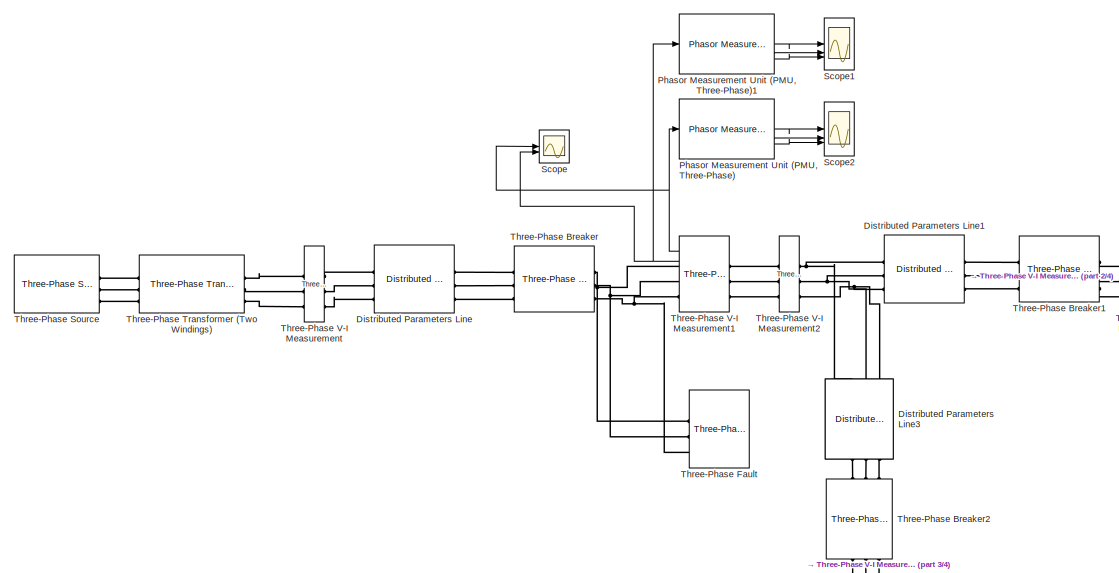
[diagram: root canvas - part 1/4, top left region]
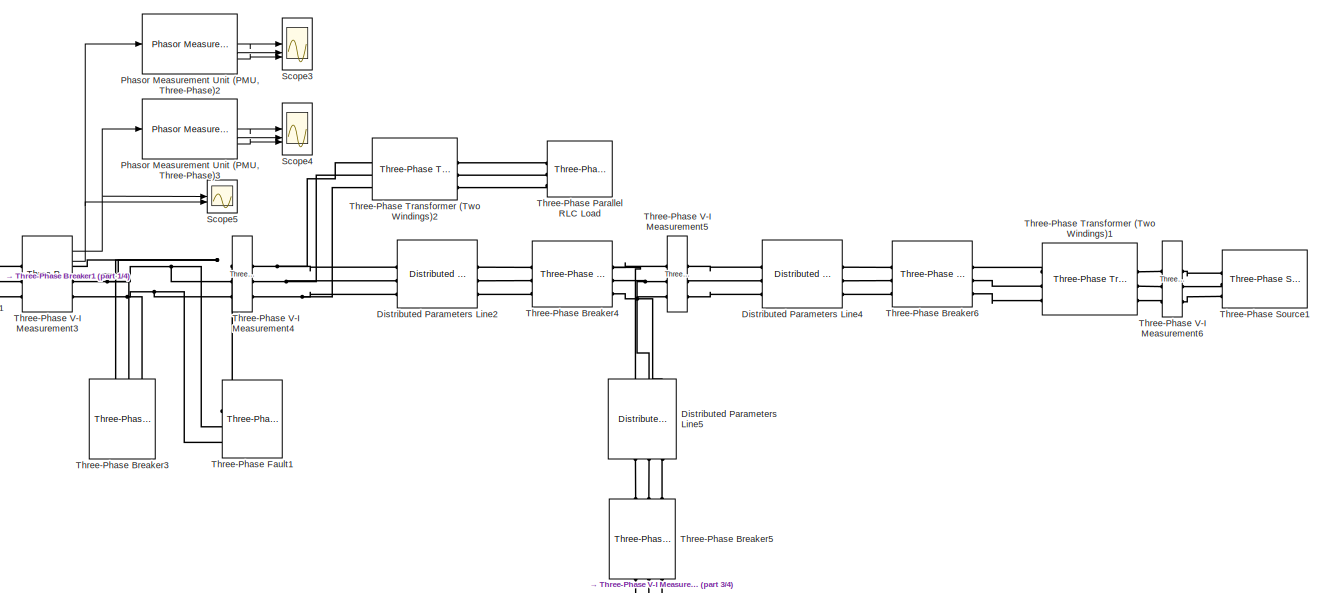
[diagram: root canvas - part 2/4, top right region]
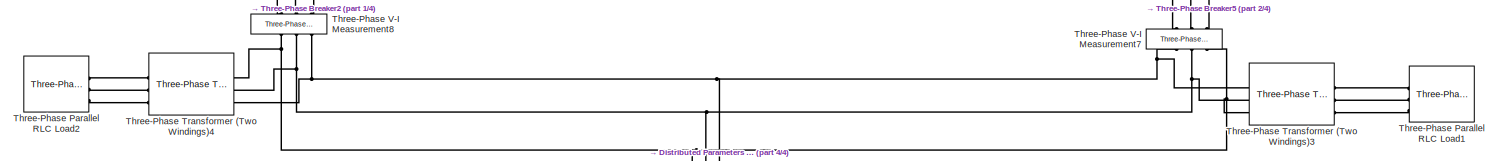
[diagram: root canvas - part 3/4, central region]
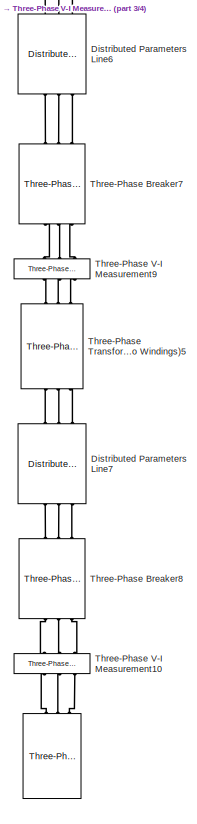
[diagram: root canvas - part 4/4, bottom center region]
MODEL slx_e5aff665d849
KIND model
CONFIG AbsTol = auto
CONFIG EnableMultiTasking = off
CONFIG FixedStep = auto
CONFIG MaxStep = auto
CONFIG MinStep = auto
CONFIG RelTol = 1e-3
CONFIG SampleTimeConstraint = Unconstrained
CONFIG SolverName = VariableStepAuto
CONFIG StartTime = 0.0
CONFIG StopTime = 10.0
BLOCK [Reference]    REF=spsThreePhaseSourceLib/Three-Phase Source
  LibrarySourceBlock = sps_lib/Sources/Three-Phase Source
  NameLocation = right
  SourceBlock = spsThreePhaseSourceLib/Three-Phase Source
  SourceType = Three-Phase Source
BLOCK [Reference]     REF=spsDistributedParametersLineLib/Distributed Parameters Line
  LibrarySourceBlock = sps_lib/Power Grid Elements/Distributed Parameters Line
  NameLocation = right
  SourceBlock = spsDistributedParametersLineLib/Distributed Parameters Line
  SourceType = Distributed Parameters Line
BLOCK [Reference] Distributed Parameters Line  REF=spsDistributedParametersLineLib/Distributed Parameters Line
  LibrarySourceBlock = sps_lib/Power Grid Elements/Distributed Parameters Line
  SourceBlock = spsDistributedParametersLineLib/Distributed Parameters Line
  SourceType = Distributed Parameters Line
BLOCK [Reference] Distributed Parameters Line1  REF=spsDistributedParametersLineLib/Distributed Parameters Line
  LibrarySourceBlock = sps_lib/Power Grid Elements/Distributed Parameters Line
  SourceBlock = spsDistributedParametersLineLib/Distributed Parameters Line
  SourceType = Distributed Parameters Line
BLOCK [Reference] Distributed Parameters Line2  REF=spsDistributedParametersLineLib/Distributed Parameters Line
  LibrarySourceBlock = sps_lib/Power Grid Elements/Distributed Parameters Line
  SourceBlock = spsDistributedParametersLineLib/Distributed Parameters Line
  SourceType = Distributed Parameters Line
BLOCK [Reference] Distributed Parameters Line3  REF=spsDistributedParametersLineLib/Distributed Parameters Line
  LibrarySourceBlock = sps_lib/Power Grid Elements/Distributed Parameters Line
  NameLocation = right
  SourceBlock = spsDistributedParametersLineLib/Distributed Parameters Line
  SourceType = Distributed Parameters Line
BLOCK [Reference] Distributed Parameters Line4  REF=spsDistributedParametersLineLib/Distributed Parameters Line
  LibrarySourceBlock = sps_lib/Power Grid Elements/Distributed Parameters Line
  SourceBlock = spsDistributedParametersLineLib/Distributed Parameters Line
  SourceType = Distributed Parameters Line
BLOCK [Reference] Distributed Parameters Line5  REF=spsDistributedParametersLineLib/Distributed Parameters Line
  LibrarySourceBlock = sps_lib/Power Grid Elements/Distributed Parameters Line
  NameLocation = right
  SourceBlock = spsDistributedParametersLineLib/Distributed Parameters Line
  SourceType = Distributed Parameters Line
BLOCK [Reference] Distributed Parameters Line6  REF=spsDistributedParametersLineLib/Distributed Parameters Line
  LibrarySourceBlock = sps_lib/Power Grid Elements/Distributed Parameters Line
  NameLocation = right
  SourceBlock = spsDistributedParametersLineLib/Distributed Parameters Line
  SourceType = Distributed Parameters Line
BLOCK [Reference] Distributed Parameters Line7  REF=spsDistributedParametersLineLib/Distributed Parameters Line
  LibrarySourceBlock = sps_lib/Power Grid Elements/Distributed Parameters Line
  NameLocation = right
  SourceBlock = spsDistributedParametersLineLib/Distributed Parameters Line
  SourceType = Distributed Parameters Line
BLOCK [Reference] Phasor Measurement Unit (PMU, Three-Phase)  REF=eePMU/Phasor Measurement Unit
(PMU, Three-Phase)
  LibrarySourceBlock = ee_sl_lib/Measurements/Phasor Measurement Unit\n(PMU, Three-Phase)
  SourceBlock = eePMU/Phasor Measurement Unit\n(PMU, Three-Phase)
  SourceType = Phasor Measurement Unit (PMU, Three-Phase)
BLOCK [Reference] Phasor Measurement Unit (PMU, Three-Phase)1  REF=eePMU/Phasor Measurement Unit
(PMU, Three-Phase)
  LibrarySourceBlock = ee_sl_lib/Measurements/Phasor Measurement Unit\n(PMU, Three-Phase)
  SourceBlock = eePMU/Phasor Measurement Unit\n(PMU, Three-Phase)
  SourceType = Phasor Measurement Unit (PMU, Three-Phase)
BLOCK [Reference] Phasor Measurement Unit (PMU, Three-Phase)2  REF=eePMU/Phasor Measurement Unit
(PMU, Three-Phase)
  LibrarySourceBlock = ee_sl_lib/Measurements/Phasor Measurement Unit\n(PMU, Three-Phase)
  SourceBlock = eePMU/Phasor Measurement Unit\n(PMU, Three-Phase)
  SourceType = Phasor Measurement Unit (PMU, Three-Phase)
BLOCK [Reference] Phasor Measurement Unit (PMU, Three-Phase)3  REF=eePMU/Phasor Measurement Unit
(PMU, Three-Phase)
  LibrarySourceBlock = ee_sl_lib/Measurements/Phasor Measurement Unit\n(PMU, Three-Phase)
  SourceBlock = eePMU/Phasor Measurement Unit\n(PMU, Three-Phase)
  SourceType = Phasor Measurement Unit (PMU, Three-Phase)
BLOCK [Scope] Scope
  Floating = off
  NumInputPorts = 2
  ScopeSpecificationString = Simulink.scopes.TimeScopeBlockCfg('CurrentConfiguration', extmgr.ConfigurationSet(extmgr.Configuration('Core','General UI',true),extmgr.Configuration('Core','Source UI',true),extmgr.Configuration('Sources','WiredSimulink',true),extmgr.Configuration('Visuals','Time Domain',true,'SerializedDisplays',{struct('MinYLimReal','-10','MaxYLimReal','10','YLabelReal','','MinYLimMag','0','MaxYLimMag','10','Le...<+1278ch>
BLOCK [Scope] Scope1
  Floating = off
  NumInputPorts = 3
  ScopeSpecificationString = Simulink.scopes.TimeScopeBlockCfg('CurrentConfiguration', extmgr.ConfigurationSet(extmgr.Configuration('Core','General UI',true),extmgr.Configuration('Core','Source UI',true),extmgr.Configuration('Sources','WiredSimulink',true,'DataLoggingVariableName','ScopeData1'),extmgr.Configuration('Visuals','Time Domain',true,'SerializedDisplays',{struct('MinYLimReal','-10','MaxYLimReal','10','YLabelReal',''...<+1317ch>
BLOCK [Scope] Scope2
  Floating = off
  NumInputPorts = 3
  ScopeSpecificationString = Simulink.scopes.TimeScopeBlockCfg('CurrentConfiguration', extmgr.ConfigurationSet(extmgr.Configuration('Core','General UI',true),extmgr.Configuration('Core','Source UI',true),extmgr.Configuration('Sources','WiredSimulink',true,'DataLoggingVariableName','ScopeData2'),extmgr.Configuration('Visuals','Time Domain',true,'SerializedDisplays',{struct('MinYLimReal','-10','MaxYLimReal','10','YLabelReal',''...<+1317ch>
BLOCK [Scope] Scope3
  Floating = off
  NumInputPorts = 3
  ScopeSpecificationString = Simulink.scopes.TimeScopeBlockCfg('CurrentConfiguration', extmgr.ConfigurationSet(extmgr.Configuration('Core','General UI',true),extmgr.Configuration('Core','Source UI',true),extmgr.Configuration('Sources','WiredSimulink',true,'DataLoggingVariableName','ScopeData3'),extmgr.Configuration('Visuals','Time Domain',true,'SerializedDisplays',{struct('MinYLimReal','-10','MaxYLimReal','10','YLabelReal',''...<+1317ch>
BLOCK [Scope] Scope4
  Floating = off
  NumInputPorts = 3
  ScopeSpecificationString = Simulink.scopes.TimeScopeBlockCfg('CurrentConfiguration', extmgr.ConfigurationSet(extmgr.Configuration('Core','General UI',true),extmgr.Configuration('Core','Source UI',true),extmgr.Configuration('Sources','WiredSimulink',true,'DataLoggingVariableName','ScopeData4'),extmgr.Configuration('Visuals','Time Domain',true,'SerializedDisplays',{struct('MinYLimReal','-10','MaxYLimReal','10','YLabelReal',''...<+1317ch>
BLOCK [Scope] Scope5
  Floating = off
  NumInputPorts = 2
  ScopeSpecificationString = Simulink.scopes.TimeScopeBlockCfg('CurrentConfiguration', extmgr.ConfigurationSet(extmgr.Configuration('Core','General UI',true),extmgr.Configuration('Core','Source UI',true),extmgr.Configuration('Sources','WiredSimulink',true,'DataLoggingVariableName','ScopeData5'),extmgr.Configuration('Visuals','Time Domain',true,'SerializedDisplays',{struct('MinYLimReal','-10','MaxYLimReal','10','YLabelReal',''...<+1317ch>
BLOCK [Reference] Three-Phase Breaker  REF=spsThreePhaseBreakerLib/Three-Phase Breaker
  LibrarySourceBlock = sps_lib/Power Grid Elements/Three-Phase Breaker
  SourceBlock = spsThreePhaseBreakerLib/Three-Phase Breaker
  SourceType = Three-Phase Breaker
BLOCK [Reference] Three-Phase Breaker1  REF=spsThreePhaseBreakerLib/Three-Phase Breaker
  LibrarySourceBlock = sps_lib/Power Grid Elements/Three-Phase Breaker
  SourceBlock = spsThreePhaseBreakerLib/Three-Phase Breaker
  SourceType = Three-Phase Breaker
BLOCK [Reference] Three-Phase Breaker2  REF=spsThreePhaseBreakerLib/Three-Phase Breaker
  LibrarySourceBlock = sps_lib/Power Grid Elements/Three-Phase Breaker
  NameLocation = right
  SourceBlock = spsThreePhaseBreakerLib/Three-Phase Breaker
  SourceType = Three-Phase Breaker
BLOCK [Reference] Three-Phase Breaker3  REF=spsThreePhaseBreakerLib/Three-Phase Breaker
  LibrarySourceBlock = sps_lib/Power Grid Elements/Three-Phase Breaker
  NameLocation = right
  SourceBlock = spsThreePhaseBreakerLib/Three-Phase Breaker
  SourceType = Three-Phase Breaker
BLOCK [Reference] Three-Phase Breaker4  REF=spsThreePhaseBreakerLib/Three-Phase Breaker
  LibrarySourceBlock = sps_lib/Power Grid Elements/Three-Phase Breaker
  SourceBlock = spsThreePhaseBreakerLib/Three-Phase Breaker
  SourceType = Three-Phase Breaker
BLOCK [Reference] Three-Phase Breaker5  REF=spsThreePhaseBreakerLib/Three-Phase Breaker
  LibrarySourceBlock = sps_lib/Power Grid Elements/Three-Phase Breaker
  NameLocation = right
  SourceBlock = spsThreePhaseBreakerLib/Three-Phase Breaker
  SourceType = Three-Phase Breaker
BLOCK [Reference] Three-Phase Breaker6  REF=spsThreePhaseBreakerLib/Three-Phase Breaker
  LibrarySourceBlock = sps_lib/Power Grid Elements/Three-Phase Breaker
  SourceBlock = spsThreePhaseBreakerLib/Three-Phase Breaker
  SourceType = Three-Phase Breaker
BLOCK [Reference] Three-Phase Breaker7  REF=spsThreePhaseBreakerLib/Three-Phase Breaker
  LibrarySourceBlock = sps_lib/Power Grid Elements/Three-Phase Breaker
  NameLocation = right
  SourceBlock = spsThreePhaseBreakerLib/Three-Phase Breaker
  SourceType = Three-Phase Breaker
BLOCK [Reference] Three-Phase Breaker8  REF=spsThreePhaseBreakerLib/Three-Phase Breaker
  LibrarySourceBlock = sps_lib/Power Grid Elements/Three-Phase Breaker
  NameLocation = right
  SourceBlock = spsThreePhaseBreakerLib/Three-Phase Breaker
  SourceType = Three-Phase Breaker
BLOCK [Reference] Three-Phase Fault  REF=spsThreePhaseFaultLib/Three-Phase Fault
  LibrarySourceBlock = sps_lib/Power Grid Elements/Three-Phase Fault
  SourceBlock = spsThreePhaseFaultLib/Three-Phase Fault
  SourceType = Three-Phase Fault
BLOCK [Reference] Three-Phase Fault1  REF=spsThreePhaseFaultLib/Three-Phase Fault
  LibrarySourceBlock = sps_lib/Power Grid Elements/Three-Phase Fault
  SourceBlock = spsThreePhaseFaultLib/Three-Phase Fault
  SourceType = Three-Phase Fault
BLOCK [Reference] Three-Phase Parallel RLC Load  REF=spsThreePhaseParallelRLCLoadLib/Three-Phase
Parallel RLC Load
  AttributesFormatString = \n
  LibrarySourceBlock = sps_lib/Passives/Three-Phase\nParallel RLC Load
  NameLocation = right
  SourceBlock = spsThreePhaseParallelRLCLoadLib/Three-Phase\nParallel RLC Load
  SourceType = Three-Phase Parallel RLC Load
BLOCK [Reference] Three-Phase Parallel RLC Load1  REF=spsThreePhaseParallelRLCLoadLib/Three-Phase
Parallel RLC Load
  AttributesFormatString = \n
  LibrarySourceBlock = sps_lib/Passives/Three-Phase\nParallel RLC Load
  NameLocation = right
  SourceBlock = spsThreePhaseParallelRLCLoadLib/Three-Phase\nParallel RLC Load
  SourceType = Three-Phase Parallel RLC Load
BLOCK [Reference] Three-Phase Parallel RLC Load2  REF=spsThreePhaseParallelRLCLoadLib/Three-Phase
Parallel RLC Load
  AttributesFormatString = \n
  LibrarySourceBlock = sps_lib/Passives/Three-Phase\nParallel RLC Load
  NameLocation = left
  SourceBlock = spsThreePhaseParallelRLCLoadLib/Three-Phase\nParallel RLC Load
  SourceType = Three-Phase Parallel RLC Load
BLOCK [Reference] Three-Phase Source  REF=spsThreePhaseSourceLib/Three-Phase Source
  LibrarySourceBlock = sps_lib/Sources/Three-Phase Source
  SourceBlock = spsThreePhaseSourceLib/Three-Phase Source
  SourceType = Three-Phase Source
BLOCK [Reference] Three-Phase Source1  REF=spsThreePhaseSourceLib/Three-Phase Source
  LibrarySourceBlock = sps_lib/Sources/Three-Phase Source
  SourceBlock = spsThreePhaseSourceLib/Three-Phase Source
  SourceType = Three-Phase Source
BLOCK [Reference] Three-Phase Transformer (Two Windings)  REF=spsThreePhaseTransformerTwoWindingsLib/Three-Phase
Transformer
(Two Windings)
  LibrarySourceBlock = sps_lib/Power Grid Elements/Three-Phase\nTransformer\n(Two Windings)
  SourceBlock = spsThreePhaseTransformerTwoWindingsLib/Three-Phase\nTransformer\n(Two Windings)
  SourceType = Three-Phase Transformer (Two Windings)
BLOCK [Reference] Three-Phase Transformer (Two Windings)1  REF=spsThreePhaseTransformerTwoWindingsLib/Three-Phase
Transformer
(Two Windings)
  LibrarySourceBlock = sps_lib/Power Grid Elements/Three-Phase\nTransformer\n(Two Windings)
  SourceBlock = spsThreePhaseTransformerTwoWindingsLib/Three-Phase\nTransformer\n(Two Windings)
  SourceType = Three-Phase Transformer (Two Windings)
BLOCK [Reference] Three-Phase Transformer (Two Windings)2  REF=spsThreePhaseTransformerTwoWindingsLib/Three-Phase
Transformer
(Two Windings)
  LibrarySourceBlock = sps_lib/Power Grid Elements/Three-Phase\nTransformer\n(Two Windings)
  SourceBlock = spsThreePhaseTransformerTwoWindingsLib/Three-Phase\nTransformer\n(Two Windings)
  SourceType = Three-Phase Transformer (Two Windings)
BLOCK [Reference] Three-Phase Transformer (Two Windings)3  REF=spsThreePhaseTransformerTwoWindingsLib/Three-Phase
Transformer
(Two Windings)
  LibrarySourceBlock = sps_lib/Power Grid Elements/Three-Phase\nTransformer\n(Two Windings)
  SourceBlock = spsThreePhaseTransformerTwoWindingsLib/Three-Phase\nTransformer\n(Two Windings)
  SourceType = Three-Phase Transformer (Two Windings)
BLOCK [Reference] Three-Phase Transformer (Two Windings)4  REF=spsThreePhaseTransformerTwoWindingsLib/Three-Phase
Transformer
(Two Windings)
  LibrarySourceBlock = sps_lib/Power Grid Elements/Three-Phase\nTransformer\n(Two Windings)
  SourceBlock = spsThreePhaseTransformerTwoWindingsLib/Three-Phase\nTransformer\n(Two Windings)
  SourceType = Three-Phase Transformer (Two Windings)
BLOCK [Reference] Three-Phase Transformer (Two Windings)5  REF=spsThreePhaseTransformerTwoWindingsLib/Three-Phase
Transformer
(Two Windings)
  LibrarySourceBlock = sps_lib/Power Grid Elements/Three-Phase\nTransformer\n(Two Windings)
  NameLocation = right
  SourceBlock = spsThreePhaseTransformerTwoWindingsLib/Three-Phase\nTransformer\n(Two Windings)
  SourceType = Three-Phase Transformer (Two Windings)
BLOCK [Reference] Three-Phase V-I Measurement  REF=spsThreePhaseVIMeasurementLib/Three-Phase
V-I Measurement
  LibrarySourceBlock = sps_lib/Sensors and Measurements/Three-Phase\nV-I Measurement
  SourceBlock = spsThreePhaseVIMeasurementLib/Three-Phase\nV-I Measurement
  SourceType = Three-Phase VI Measurement
BLOCK [Reference] Three-Phase V-I Measurement1  REF=spsThreePhaseVIMeasurementLib/Three-Phase
V-I Measurement
  LibrarySourceBlock = sps_lib/Sensors and Measurements/Three-Phase\nV-I Measurement
  SourceBlock = spsThreePhaseVIMeasurementLib/Three-Phase\nV-I Measurement
  SourceType = Three-Phase VI Measurement
BLOCK [Reference] Three-Phase V-I Measurement10  REF=spsThreePhaseVIMeasurementLib/Three-Phase
V-I Measurement
  LibrarySourceBlock = sps_lib/Sensors and Measurements/Three-Phase\nV-I Measurement
  NameLocation = right
  SourceBlock = spsThreePhaseVIMeasurementLib/Three-Phase\nV-I Measurement
  SourceType = Three-Phase VI Measurement
BLOCK [Reference] Three-Phase V-I Measurement2  REF=spsThreePhaseVIMeasurementLib/Three-Phase
V-I Measurement
  LibrarySourceBlock = sps_lib/Sensors and Measurements/Three-Phase\nV-I Measurement
  SourceBlock = spsThreePhaseVIMeasurementLib/Three-Phase\nV-I Measurement
  SourceType = Three-Phase VI Measurement
BLOCK [Reference] Three-Phase V-I Measurement3  REF=spsThreePhaseVIMeasurementLib/Three-Phase
V-I Measurement
  LibrarySourceBlock = sps_lib/Sensors and Measurements/Three-Phase\nV-I Measurement
  SourceBlock = spsThreePhaseVIMeasurementLib/Three-Phase\nV-I Measurement
  SourceType = Three-Phase VI Measurement
BLOCK [Reference] Three-Phase V-I Measurement4  REF=spsThreePhaseVIMeasurementLib/Three-Phase
V-I Measurement
  LibrarySourceBlock = sps_lib/Sensors and Measurements/Three-Phase\nV-I Measurement
  SourceBlock = spsThreePhaseVIMeasurementLib/Three-Phase\nV-I Measurement
  SourceType = Three-Phase VI Measurement
BLOCK [Reference] Three-Phase V-I Measurement5  REF=spsThreePhaseVIMeasurementLib/Three-Phase
V-I Measurement
  LibrarySourceBlock = sps_lib/Sensors and Measurements/Three-Phase\nV-I Measurement
  SourceBlock = spsThreePhaseVIMeasurementLib/Three-Phase\nV-I Measurement
  SourceType = Three-Phase VI Measurement
BLOCK [Reference] Three-Phase V-I Measurement6  REF=spsThreePhaseVIMeasurementLib/Three-Phase
V-I Measurement
  LibrarySourceBlock = sps_lib/Sensors and Measurements/Three-Phase\nV-I Measurement
  SourceBlock = spsThreePhaseVIMeasurementLib/Three-Phase\nV-I Measurement
  SourceType = Three-Phase VI Measurement
BLOCK [Reference] Three-Phase V-I Measurement7  REF=spsThreePhaseVIMeasurementLib/Three-Phase
V-I Measurement
  LibrarySourceBlock = sps_lib/Sensors and Measurements/Three-Phase\nV-I Measurement
  NameLocation = right
  SourceBlock = spsThreePhaseVIMeasurementLib/Three-Phase\nV-I Measurement
  SourceType = Three-Phase VI Measurement
BLOCK [Reference] Three-Phase V-I Measurement8  REF=spsThreePhaseVIMeasurementLib/Three-Phase
V-I Measurement
  LibrarySourceBlock = sps_lib/Sensors and Measurements/Three-Phase\nV-I Measurement
  NameLocation = right
  SourceBlock = spsThreePhaseVIMeasurementLib/Three-Phase\nV-I Measurement
  SourceType = Three-Phase VI Measurement
BLOCK [Reference] Three-Phase V-I Measurement9  REF=spsThreePhaseVIMeasurementLib/Three-Phase
V-I Measurement
  LibrarySourceBlock = sps_lib/Sensors and Measurements/Three-Phase\nV-I Measurement
  NameLocation = right
  SourceBlock = spsThreePhaseVIMeasurementLib/Three-Phase\nV-I Measurement
  SourceType = Three-Phase VI Measurement
LINE Phasor Measurement Unit (PMU, Three-Phase)1:1 -> Scope1:1
LINE Phasor Measurement Unit (PMU, Three-Phase)1:2 -> Scope1:2
LINE Phasor Measurement Unit (PMU, Three-Phase)1:3 -> Scope1:3
LINE Phasor Measurement Unit (PMU, Three-Phase)2:1 -> Scope3:1
LINE Phasor Measurement Unit (PMU, Three-Phase)2:2 -> Scope3:2
LINE Phasor Measurement Unit (PMU, Three-Phase)2:3 -> Scope3:3
LINE Phasor Measurement Unit (PMU, Three-Phase)3:1 -> Scope4:1
LINE Phasor Measurement Unit (PMU, Three-Phase)3:2 -> Scope4:2
LINE Phasor Measurement Unit (PMU, Three-Phase)3:3 -> Scope4:3
LINE Phasor Measurement Unit (PMU, Three-Phase):1 -> Scope2:1
LINE Phasor Measurement Unit (PMU, Three-Phase):2 -> Scope2:2
LINE Phasor Measurement Unit (PMU, Three-Phase):3 -> Scope2:3
NET Three-Phase V-I Measurement1:1 -> Phasor Measurement Unit (PMU, Three-Phase):1, Scope:1
NET Three-Phase V-I Measurement1:2 -> Phasor Measurement Unit (PMU, Three-Phase)1:1, Scope:2
NET Three-Phase V-I Measurement3:1 -> Phasor Measurement Unit (PMU, Three-Phase)3:1, Scope5:1
NET Three-Phase V-I Measurement3:2 -> Phasor Measurement Unit (PMU, Three-Phase)2:1, Scope5:2
PNET net1:   :RConn1 -- Distributed Parameters Line1:LConn1 -- Three-Phase V-I Measurement2:RConn1
PNET net2:   :RConn2 -- Distributed Parameters Line1:LConn2 -- Three-Phase V-I Measurement2:RConn2
PLINE  :RConn1 -- Three-Phase V-I Measurement10:RConn1
PLINE  :RConn2 -- Three-Phase V-I Measurement10:RConn2
PLINE  :RConn3 -- Three-Phase V-I Measurement10:RConn3
PNET net3: Distributed Parameters Line1:LConn3 -- Distributed Parameters Line3:RConn3 -- Three-Phase V-I Measurement2:RConn3
PLINE Distributed Parameters Line1:RConn1 -- Three-Phase Breaker1:LConn1
PLINE Distributed Parameters Line1:RConn2 -- Three-Phase Breaker1:LConn2
PLINE Distributed Parameters Line1:RConn3 -- Three-Phase Breaker1:LConn3
PNET net4: Distributed Parameters Line2:LConn1 -- Three-Phase Transformer (Two Windings)2:LConn1 -- Three-Phase V-I Measurement4:RConn1
PNET net5: Distributed Parameters Line2:LConn2 -- Three-Phase Transformer (Two Windings)2:LConn2 -- Three-Phase V-I Measurement4:RConn2
PNET net6: Distributed Parameters Line2:LConn3 -- Three-Phase Transformer (Two Windings)2:LConn3 -- Three-Phase V-I Measurement4:RConn3
PLINE Distributed Parameters Line2:RConn1 -- Three-Phase Breaker4:LConn1
PLINE Distributed Parameters Line2:RConn2 -- Three-Phase Breaker4:LConn2
PLINE Distributed Parameters Line2:RConn3 -- Three-Phase Breaker4:LConn3
PLINE Distributed Parameters Line3:LConn1 -- Three-Phase Breaker2:LConn1
PLINE Distributed Parameters Line3:LConn2 -- Three-Phase Breaker2:LConn2
PLINE Distributed Parameters Line3:LConn3 -- Three-Phase Breaker2:LConn3
PLINE Distributed Parameters Line4:LConn1 -- Three-Phase V-I Measurement5:RConn1
PLINE Distributed Parameters Line4:LConn2 -- Three-Phase V-I Measurement5:RConn2
PLINE Distributed Parameters Line4:LConn3 -- Three-Phase V-I Measurement5:RConn3
PLINE Distributed Parameters Line4:RConn1 -- Three-Phase Breaker6:LConn1
PLINE Distributed Parameters Line4:RConn2 -- Three-Phase Breaker6:LConn2
PLINE Distributed Parameters Line4:RConn3 -- Three-Phase Breaker6:LConn3
PLINE Distributed Parameters Line5:LConn1 -- Three-Phase Breaker5:LConn1
PLINE Distributed Parameters Line5:LConn2 -- Three-Phase Breaker5:LConn2
PLINE Distributed Parameters Line5:LConn3 -- Three-Phase Breaker5:LConn3
PNET net7: Distributed Parameters Line5:RConn1 -- Three-Phase Breaker4:RConn1 -- Three-Phase V-I Measurement5:LConn1
PNET net8: Distributed Parameters Line5:RConn2 -- Three-Phase Breaker4:RConn2 -- Three-Phase V-I Measurement5:LConn2
PNET net9: Distributed Parameters Line5:RConn3 -- Three-Phase Breaker4:RConn3 -- Three-Phase V-I Measurement5:LConn3
PLINE Distributed Parameters Line6:LConn1 -- Three-Phase Breaker7:LConn1
PLINE Distributed Parameters Line6:LConn2 -- Three-Phase Breaker7:LConn2
PLINE Distributed Parameters Line6:LConn3 -- Three-Phase Breaker7:LConn3
PNET net10: Distributed Parameters Line6:RConn1 -- Three-Phase Transformer (Two Windings)3:LConn3 -- Three-Phase Transformer (Two Windings)4:LConn1 -- Three-Phase V-I Measurement7:RConn3 -- Three-Phase V-I Measurement8:RConn1
PNET net11: Distributed Parameters Line6:RConn2 -- Three-Phase Transformer (Two Windings)3:LConn2 -- Three-Phase Transformer (Two Windings)4:LConn2 -- Three-Phase V-I Measurement7:RConn2 -- Three-Phase V-I Measurement8:RConn2
PNET net12: Distributed Parameters Line6:RConn3 -- Three-Phase Transformer (Two Windings)3:LConn1 -- Three-Phase Transformer (Two Windings)4:LConn3 -- Three-Phase V-I Measurement7:RConn1 -- Three-Phase V-I Measurement8:RConn3
PLINE Distributed Parameters Line7:LConn1 -- Three-Phase Breaker8:LConn1
PLINE Distributed Parameters Line7:LConn2 -- Three-Phase Breaker8:LConn2
PLINE Distributed Parameters Line7:LConn3 -- Three-Phase Breaker8:LConn3
PLINE Distributed Parameters Line7:RConn1 -- Three-Phase Transformer (Two Windings)5:LConn1
PLINE Distributed Parameters Line7:RConn2 -- Three-Phase Transformer (Two Windings)5:LConn2
PLINE Distributed Parameters Line7:RConn3 -- Three-Phase Transformer (Two Windings)5:LConn3
PLINE Distributed Parameters Line:LConn1 -- Three-Phase V-I Measurement:RConn1
PLINE Distributed Parameters Line:LConn2 -- Three-Phase V-I Measurement:RConn2
PLINE Distributed Parameters Line:LConn3 -- Three-Phase V-I Measurement:RConn3
PLINE Distributed Parameters Line:RConn1 -- Three-Phase Breaker:LConn1
PLINE Distributed Parameters Line:RConn2 -- Three-Phase Breaker:LConn2
PLINE Distributed Parameters Line:RConn3 -- Three-Phase Breaker:LConn3
PLINE Three-Phase Breaker1:RConn1 -- Three-Phase V-I Measurement3:LConn1
PLINE Three-Phase Breaker1:RConn2 -- Three-Phase V-I Measurement3:LConn2
PLINE Three-Phase Breaker1:RConn3 -- Three-Phase V-I Measurement3:LConn3
PLINE Three-Phase Breaker2:RConn1 -- Three-Phase V-I Measurement8:LConn1
PLINE Three-Phase Breaker2:RConn2 -- Three-Phase V-I Measurement8:LConn2
PLINE Three-Phase Breaker2:RConn3 -- Three-Phase V-I Measurement8:LConn3
PNET net13: Three-Phase Breaker3:LConn1 -- Three-Phase Fault1:LConn1 -- Three-Phase V-I Measurement3:RConn1 -- Three-Phase V-I Measurement4:LConn1
PNET net14: Three-Phase Breaker3:LConn2 -- Three-Phase Fault1:LConn2 -- Three-Phase V-I Measurement3:RConn2 -- Three-Phase V-I Measurement4:LConn2
PNET net15: Three-Phase Breaker3:LConn3 -- Three-Phase Fault1:LConn3 -- Three-Phase V-I Measurement3:RConn3 -- Three-Phase V-I Measurement4:LConn3
PLINE Three-Phase Breaker5:RConn1 -- Three-Phase V-I Measurement7:LConn1
PLINE Three-Phase Breaker5:RConn2 -- Three-Phase V-I Measurement7:LConn2
PLINE Three-Phase Breaker5:RConn3 -- Three-Phase V-I Measurement7:LConn3
PLINE Three-Phase Breaker6:RConn1 -- Three-Phase Transformer (Two Windings)1:LConn1
PLINE Three-Phase Breaker6:RConn2 -- Three-Phase Transformer (Two Windings)1:LConn2
PLINE Three-Phase Breaker6:RConn3 -- Three-Phase Transformer (Two Windings)1:LConn3
PLINE Three-Phase Breaker7:RConn1 -- Three-Phase V-I Measurement9:LConn1
PLINE Three-Phase Breaker7:RConn2 -- Three-Phase V-I Measurement9:LConn2
PLINE Three-Phase Breaker7:RConn3 -- Three-Phase V-I Measurement9:LConn3
PLINE Three-Phase Breaker8:RConn1 -- Three-Phase V-I Measurement10:LConn1
PLINE Three-Phase Breaker8:RConn2 -- Three-Phase V-I Measurement10:LConn2
PLINE Three-Phase Breaker8:RConn3 -- Three-Phase V-I Measurement10:LConn3
PNET net16: Three-Phase Breaker:RConn1 -- Three-Phase Fault:LConn1 -- Three-Phase V-I Measurement1:RConn1
PNET net17: Three-Phase Breaker:RConn2 -- Three-Phase Fault:LConn2 -- Three-Phase V-I Measurement1:RConn2
PNET net18: Three-Phase Breaker:RConn3 -- Three-Phase Fault:LConn3 -- Three-Phase V-I Measurement1:RConn3
PLINE Three-Phase Parallel RLC Load1:LConn1 -- Three-Phase Transformer (Two Windings)3:RConn1
PLINE Three-Phase Parallel RLC Load1:LConn2 -- Three-Phase Transformer (Two Windings)3:RConn2
PLINE Three-Phase Parallel RLC Load1:LConn3 -- Three-Phase Transformer (Two Windings)3:RConn3
PLINE Three-Phase Parallel RLC Load2:LConn1 -- Three-Phase Transformer (Two Windings)4:RConn1
PLINE Three-Phase Parallel RLC Load2:LConn2 -- Three-Phase Transformer (Two Windings)4:RConn2
PLINE Three-Phase Parallel RLC Load2:LConn3 -- Three-Phase Transformer (Two Windings)4:RConn3
PLINE Three-Phase Parallel RLC Load:LConn1 -- Three-Phase Transformer (Two Windings)2:RConn1
PLINE Three-Phase Parallel RLC Load:LConn2 -- Three-Phase Transformer (Two Windings)2:RConn2
PLINE Three-Phase Parallel RLC Load:LConn3 -- Three-Phase Transformer (Two Windings)2:RConn3
PLINE Three-Phase Source1:RConn1 -- Three-Phase V-I Measurement6:RConn1
PLINE Three-Phase Source1:RConn2 -- Three-Phase V-I Measurement6:RConn2
PLINE Three-Phase Source1:RConn3 -- Three-Phase V-I Measurement6:RConn3
PLINE Three-Phase Source:RConn1 -- Three-Phase Transformer (Two Windings):LConn1
PLINE Three-Phase Source:RConn2 -- Three-Phase Transformer (Two Windings):LConn2
PLINE Three-Phase Source:RConn3 -- Three-Phase Transformer (Two Windings):LConn3
PLINE Three-Phase Transformer (Two Windings)1:RConn1 -- Three-Phase V-I Measurement6:LConn1
PLINE Three-Phase Transformer (Two Windings)1:RConn2 -- Three-Phase V-I Measurement6:LConn2
PLINE Three-Phase Transformer (Two Windings)1:RConn3 -- Three-Phase V-I Measurement6:LConn3
PLINE Three-Phase Transformer (Two Windings)5:RConn1 -- Three-Phase V-I Measurement9:RConn1
PLINE Three-Phase Transformer (Two Windings)5:RConn2 -- Three-Phase V-I Measurement9:RConn2
PLINE Three-Phase Transformer (Two Windings)5:RConn3 -- Three-Phase V-I Measurement9:RConn3
PLINE Three-Phase Transformer (Two Windings):RConn1 -- Three-Phase V-I Measurement:LConn1
PLINE Three-Phase Transformer (Two Windings):RConn2 -- Three-Phase V-I Measurement:LConn2
PLINE Three-Phase Transformer (Two Windings):RConn3 -- Three-Phase V-I Measurement:LConn3
PLINE Three-Phase V-I Measurement1:LConn1 -- Three-Phase V-I Measurement2:LConn1
PLINE Three-Phase V-I Measurement1:LConn2 -- Three-Phase V-I Measurement2:LConn2
PLINE Three-Phase V-I Measurement1:LConn3 -- Three-Phase V-I Measurement2:LConn3
note: NET lines group one-source signal fan-out (src -> all destinations, sorted); 1:1 wires keep LINE; PNET lines group multi-terminal physical nets as a canonical sorted terminal list (undirected conserving connections); 2-terminal nets keep the pairwise PLINE form
